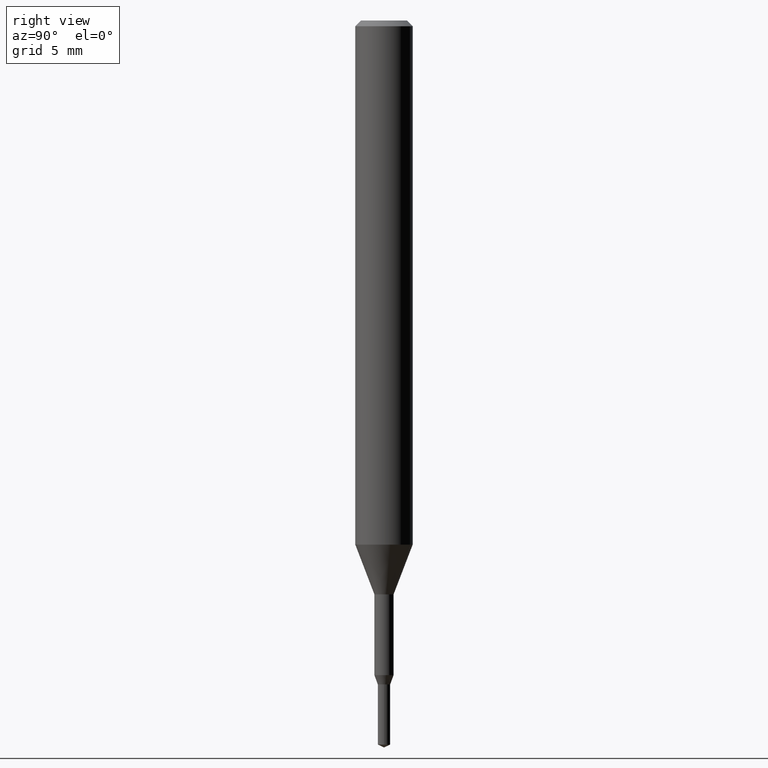
[diagram: clean part render]
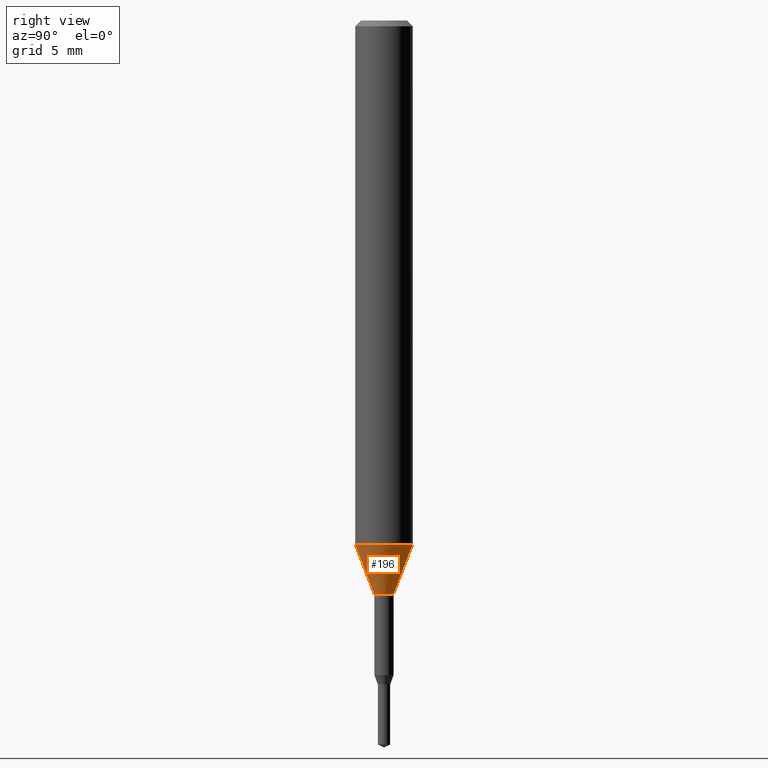
[diagram: same view with one face highlighted and labeled with its STEP entity id]
A machine part, right view. The second image highlights one B-rep face of the part: STEP entity #196.
In plain terms, the highlighted conical surface has half-angle 21.001 deg.
Its self-contained STEP definition (entity closure, byte-faithful):
#114=VERTEX_POINT('',#291);
#120=EDGE_CURVE('',#114,#200,#298,.T.);
#130=VERTEX_POINT('',#311);
#176=EDGE_CURVE('',#242,#114,#359,.T.);
#196=ADVANCED_FACE('',(#382),#383,.T.);
#200=VERTEX_POINT('',#388);
#216=EDGE_CURVE('',#200,#130,#407,.T.);
#218=EDGE_CURVE('',#242,#130,#409,.T.);
#242=VERTEX_POINT('',#436);
#291=CARTESIAN_POINT('',(0.0,0.5,-30.0));
#298=CIRCLE('',#492,0.5);
#311=CARTESIAN_POINT('',(1.83690953073357E-016,-1.5,-27.395));
#359=LINE('',#572,#573);
#382=FACE_OUTER_BOUND('',#601,.T.);
#383=CONICAL_SURFACE('',#602,1.0,0.366530581623394);
#388=CARTESIAN_POINT('',(6.12303176911189E-017,-0.5,-30.0));
#407=LINE('',#630,#631);
#409=CIRCLE('',#634,1.5);
#436=CARTESIAN_POINT('',(0.0,1.5,-27.395));
#492=AXIS2_PLACEMENT_3D('',#720,#721,#722);
#572=CARTESIAN_POINT('',(-1.22460635382238E-016,1.0,-28.6975));
#573=VECTOR('',#788,1.0);
#601=EDGE_LOOP('',(#828,#829,#830,#831));
#602=AXIS2_PLACEMENT_3D('',#832,#833,#834);
#630=CARTESIAN_POINT('',(1.22460635382238E-016,-1.0,-28.6975));
#631=VECTOR('',#868,1.0);
#634=AXIS2_PLACEMENT_3D('',#869,#870,#871);
#720=CARTESIAN_POINT('',(0.0,0.0,-30.0));
#721=DIRECTION('',(0.0,0.0,-1.0));
#722=DIRECTION('',(0.0,1.0,0.0));
#788=DIRECTION('',(4.38872745501645E-017,-0.35837862847256,-0.933576327171018));
#828=ORIENTED_EDGE('',*,*,#176,.F.);
#829=ORIENTED_EDGE('',*,*,#218,.T.);
#830=ORIENTED_EDGE('',*,*,#216,.F.);
#831=ORIENTED_EDGE('',*,*,#120,.F.);
#832=CARTESIAN_POINT('',(0.0,0.0,-28.6975));
#833=DIRECTION('',(-0.0,-0.0,1.0));
#834=DIRECTION('',(0.0,1.0,0.0));
#868=DIRECTION('',(4.38872745501645E-017,-0.35837862847256,0.933576327171018));
#869=CARTESIAN_POINT('',(0.0,0.0,-27.395));
#870=DIRECTION('',(0.0,0.0,-1.0));
#871=DIRECTION('',(0.0,1.0,0.0));